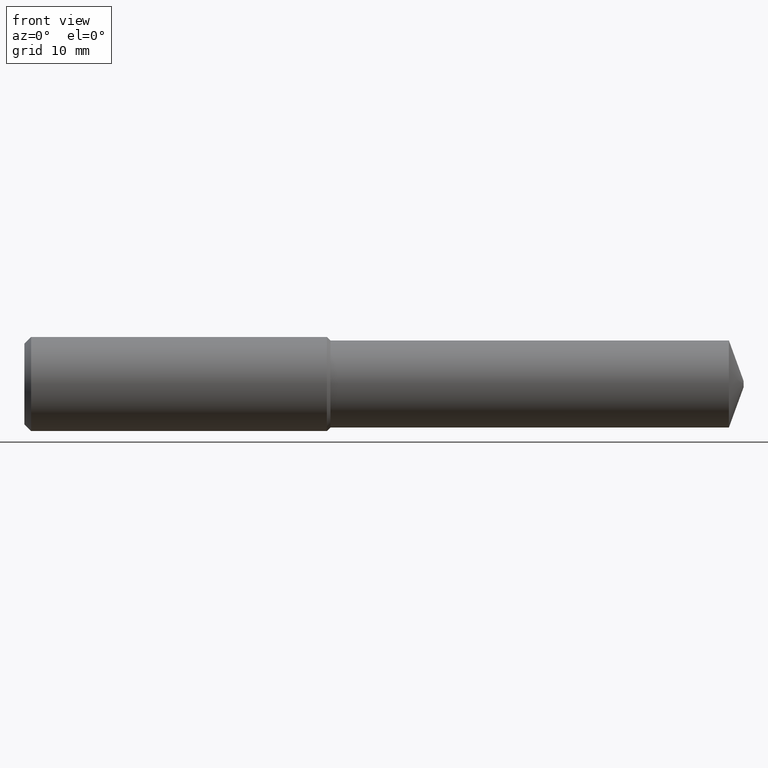
[diagram: clean part render]
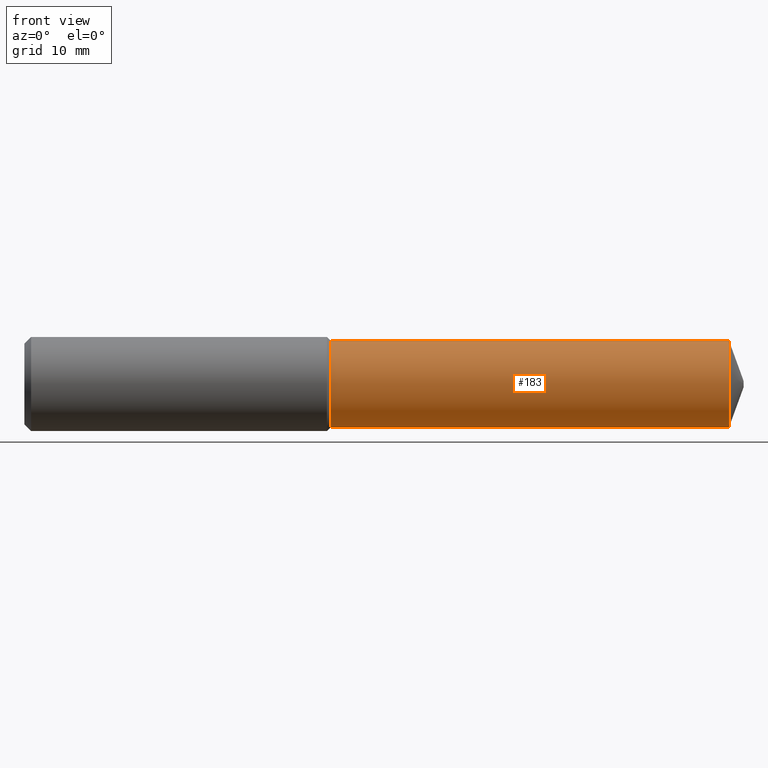
[diagram: same view with one face highlighted and labeled with its STEP entity id]
A machine part, front view. The second image highlights one B-rep face of the part: STEP entity #183.
In plain terms, the highlighted cylindrical surface (partial cylindrical patch) has radius 6.4643 mm, axis along (1, -0, -0).
Its self-contained STEP definition (entity closure, byte-faithful):
#9 = DIRECTION ( 'NONE',  ( 0.000000000000000000, 0.000000000000000000, -1.000000000000000000 ) ) ;
#11 = FACE_OUTER_BOUND ( 'NONE', #57, .T. ) ;
#16 = ORIENTED_EDGE ( 'NONE', *, *, #73, .F. ) ;
#37 = DIRECTION ( 'NONE',  ( 0.000000000000000000, 0.000000000000000000, -1.000000000000000000 ) ) ;
#39 = CIRCLE ( 'NONE', #92, 0.2545000000000002260 ) ;
#42 = CARTESIAN_POINT ( 'NONE',  ( 1.792744094488189166, 0.000000000000000000, 0.000000000000000000 ) ) ;
#57 = EDGE_LOOP ( 'NONE', ( #70, #258, #142, #16 ) ) ;
#70 = ORIENTED_EDGE ( 'NONE', *, *, #132, .F. ) ;
#73 = EDGE_CURVE ( 'NONE', #99, #134, #150, .T. ) ;
#84 = DIRECTION ( 'NONE',  ( 1.000000000000000000, -0.000000000000000000, -0.000000000000000000 ) ) ;
#90 = CARTESIAN_POINT ( 'NONE',  ( 4.126337479675760811, 0.000000000000000000, 0.2545000000000006146 ) ) ;
#92 = AXIS2_PLACEMENT_3D ( 'NONE', #42, #124, #37 ) ;
#99 = VERTEX_POINT ( 'NONE', #90 ) ;
#124 = DIRECTION ( 'NONE',  ( 1.000000000000000000, -0.000000000000000000, -0.000000000000000000 ) ) ;
#129 = VECTOR ( 'NONE', #84, 39.37007874015748143 ) ;
#132 = EDGE_CURVE ( 'NONE', #228, #99, #357, .T. ) ;
#134 = VERTEX_POINT ( 'NONE', #273 ) ;
#135 = AXIS2_PLACEMENT_3D ( 'NONE', #360, #303, #9 ) ;
#142 = ORIENTED_EDGE ( 'NONE', *, *, #361, .T. ) ;
#150 = CIRCLE ( 'NONE', #156, 0.2545000000000005036 ) ;
#156 = AXIS2_PLACEMENT_3D ( 'NONE', #319, #235, #324 ) ;
#183 = ADVANCED_FACE ( 'NONE', ( #11 ), #248, .T. ) ;
#190 = CARTESIAN_POINT ( 'NONE',  ( -0.03808593750000075634, 0.000000000000000000, -0.2545000000000003926 ) ) ;
#199 = VECTOR ( 'NONE', #312, 39.37007874015748143 ) ;
#221 = VERTEX_POINT ( 'NONE', #365 ) ;
#227 = LINE ( 'NONE', #190, #199 ) ;
#228 = VERTEX_POINT ( 'NONE', #329 ) ;
#235 = DIRECTION ( 'NONE',  ( 1.000000000000000000, -0.000000000000000000, -0.000000000000000000 ) ) ;
#248 = CYLINDRICAL_SURFACE ( 'NONE', #135, 0.2545000000000003926 ) ;
#258 = ORIENTED_EDGE ( 'NONE', *, *, #281, .T. ) ;
#273 = CARTESIAN_POINT ( 'NONE',  ( 4.126337479675760811, 3.116726103830021186E-17, -0.2545000000000006146 ) ) ;
#281 = EDGE_CURVE ( 'NONE', #228, #221, #39, .T. ) ;
#303 = DIRECTION ( 'NONE',  ( 1.000000000000000000, -0.000000000000000000, -0.000000000000000000 ) ) ;
#312 = DIRECTION ( 'NONE',  ( 1.000000000000000000, -0.000000000000000000, -0.000000000000000000 ) ) ;
#319 = CARTESIAN_POINT ( 'NONE',  ( 4.126337479675760811, 0.000000000000000000, 0.000000000000000000 ) ) ;
#324 = DIRECTION ( 'NONE',  ( 0.000000000000000000, 0.000000000000000000, -1.000000000000000000 ) ) ;
#325 = CARTESIAN_POINT ( 'NONE',  ( -0.03808593750000075634, 3.116726103830018721E-17, 0.2545000000000003926 ) ) ;
#329 = CARTESIAN_POINT ( 'NONE',  ( 1.792744094488189166, 3.116726103830018104E-17, 0.2545000000000002260 ) ) ;
#357 = LINE ( 'NONE', #325, #129 ) ;
#360 = CARTESIAN_POINT ( 'NONE',  ( -0.03808593750000075634, 0.000000000000000000, 0.000000000000000000 ) ) ;
#361 = EDGE_CURVE ( 'NONE', #221, #134, #227, .T. ) ;
#365 = CARTESIAN_POINT ( 'NONE',  ( 1.792744094488189166, 0.000000000000000000, -0.2545000000000002260 ) ) ;